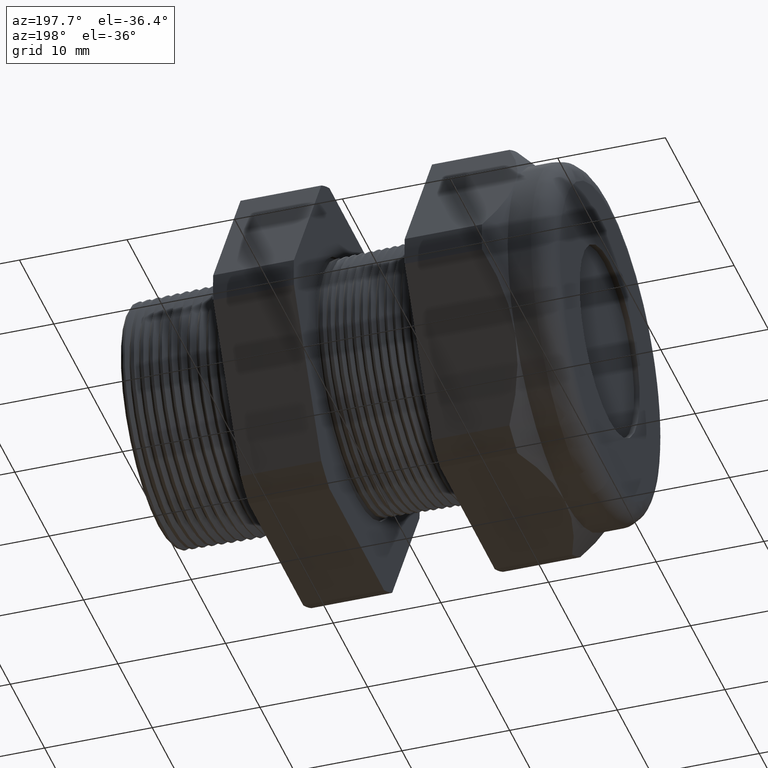
[diagram: clean part render]
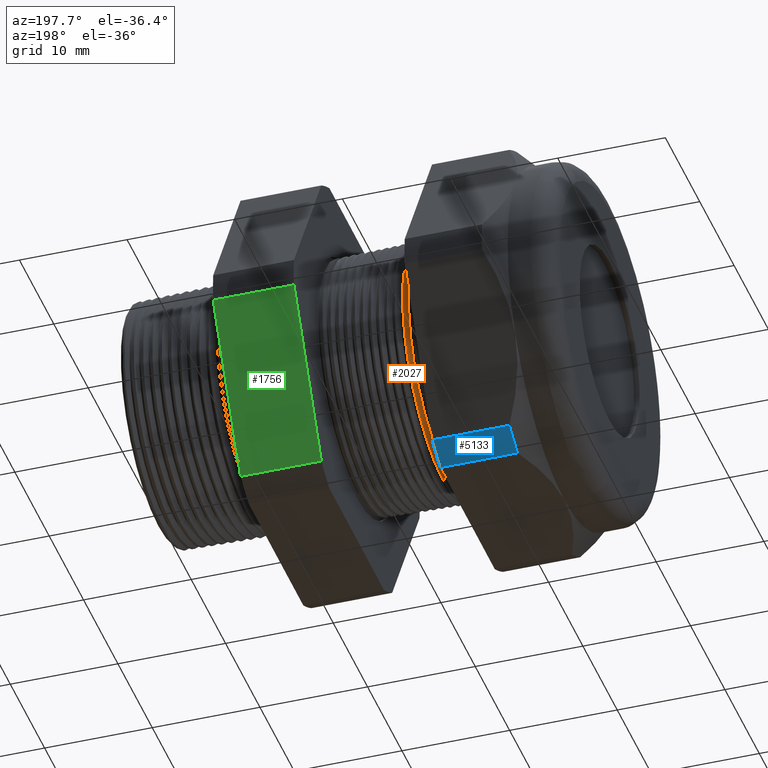
[diagram: same view with three faces highlighted in distinct colors, each labeled with its STEP entity id]
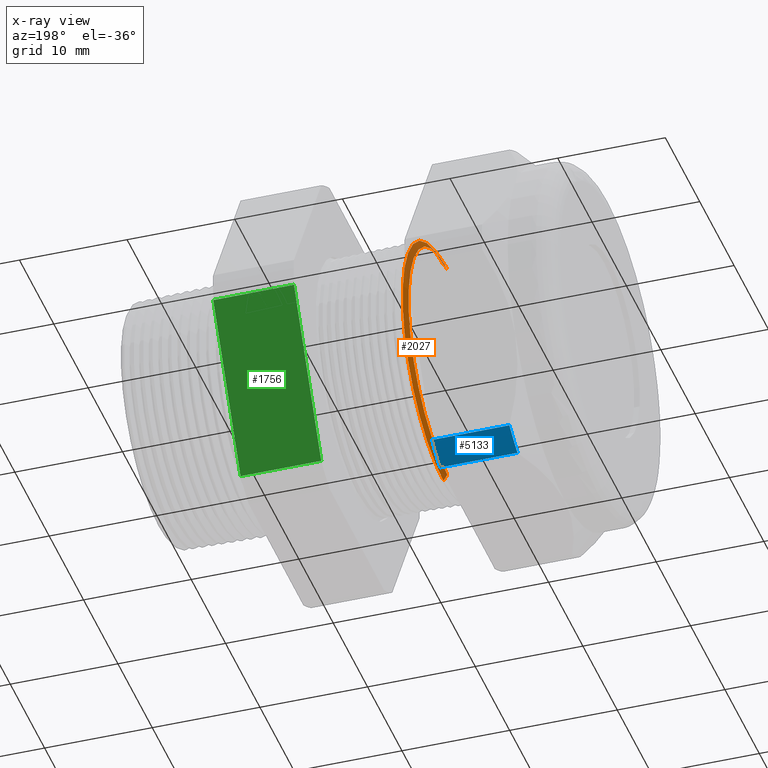
[diagram: x-ray of the same camera — body ghosted, the three highlighted faces saturated]
A machine part, auxiliary view with three faces highlighted in distinct colors.
The next image is the same camera in x-ray (body ghosted, the three faces saturated) — at least one of them is partly hidden behind the body in this view.
Their STEP definitions:

[orange] entity #2027 — the highlighted conical surface has half-angle 58.5 deg.
#2003 = VERTEX_POINT ( 'NONE', #4179 ) ;
#2004 = ORIENTED_EDGE ( 'NONE', *, *, #2005, .T. ) ;
#2005 = EDGE_CURVE ( 'NONE', #2003, #2006, #4178, .T. ) ;
#2006 = VERTEX_POINT ( 'NONE', #4174 ) ;
#2007 = ORIENTED_EDGE ( 'NONE', *, *, #2008, .T. ) ;
#2008 = EDGE_CURVE ( 'NONE', #2006, #2009, #4173, .T. ) ;
#2009 = VERTEX_POINT ( 'NONE', #4168 ) ;
#2010 = ORIENTED_EDGE ( 'NONE', *, *, #2011, .F. ) ;
#2011 = EDGE_CURVE ( 'NONE', #2031, #2009, #4167, .T. ) ;
#2027 = ADVANCED_FACE ( 'NONE', ( #4198 ), #4196, .T. ) ;
#2028 = EDGE_LOOP ( 'NONE', ( #2029, #2004, #2007, #2010 ) ) ;
#2029 = ORIENTED_EDGE ( 'NONE', *, *, #2030, .T. ) ;
#2030 = EDGE_CURVE ( 'NONE', #2031, #2003, #4191, .T. ) ;
#2031 = VERTEX_POINT ( 'NONE', #4187 ) ;
#4164 = DIRECTION ( 'NONE',  ( 0.5224985647159348100, 0.0000000000000000000, -0.8526401643541007300 ) ) ;
#4165 = VECTOR ( 'NONE', #4164, 39.37007874015748900 ) ;
#4166 = CARTESIAN_POINT ( 'NONE',  ( -0.9365405736958171100, 0.0000000000000000000, -0.4446307351718083400 ) ) ;
#4167 = LINE ( 'NONE', #4166, #4165 ) ;
#4168 = CARTESIAN_POINT ( 'NONE',  ( -0.9224049386564370200, 5.727648526171992200E-017, -0.4676979950594573600 ) ) ;
#4169 = DIRECTION ( 'NONE',  ( 0.0000000000000000000, 0.0000000000000000000, -1.000000000000000000 ) ) ;
#4170 = DIRECTION ( 'NONE',  ( -1.000000000000000000, 0.0000000000000000000, 0.0000000000000000000 ) ) ;
#4171 = CARTESIAN_POINT ( 'NONE',  ( -0.9224049386564370200, 0.0000000000000000000, 0.0000000000000000000 ) ) ;
#4172 = AXIS2_PLACEMENT_3D ( 'NONE', #4171, #4170, #4169 ) ;
#4173 = CIRCLE ( 'NONE', #4172, 0.4676979950594573600 ) ;
#4174 = CARTESIAN_POINT ( 'NONE',  ( -0.9224049386564370200, 0.0000000000000000000, 0.4676979950594573600 ) ) ;
#4175 = DIRECTION ( 'NONE',  ( 0.5224985647159348100, 1.044183048100722500E-016, 0.8526401643541007300 ) ) ;
#4176 = VECTOR ( 'NONE', #4175, 39.37007874015748900 ) ;
#4177 = CARTESIAN_POINT ( 'NONE',  ( -0.9365405736958171100, 5.445156066306895900E-017, 0.4446307351718083400 ) ) ;
#4178 = LINE ( 'NONE', #4177, #4176 ) ;
#4179 = CARTESIAN_POINT ( 'NONE',  ( -0.9365405736958171100, 0.0000000000000000000, 0.4446307351718083400 ) ) ;
#4187 = CARTESIAN_POINT ( 'NONE',  ( -0.9365405736958171100, 5.590738703805261400E-017, -0.4446307351718083400 ) ) ;
#4188 = DIRECTION ( 'NONE',  ( 0.0000000000000000000, 0.0000000000000000000, -1.000000000000000000 ) ) ;
#4189 = DIRECTION ( 'NONE',  ( 1.000000000000000000, 0.0000000000000000000, 0.0000000000000000000 ) ) ;
#4190 = AXIS2_PLACEMENT_3D ( 'NONE', #4197, #4189, #4188 ) ;
#4191 = CIRCLE ( 'NONE', #4190, 0.4446307351718083400 ) ;
#4192 = DIRECTION ( 'NONE',  ( 0.0000000000000000000, 0.0000000000000000000, -1.000000000000000000 ) ) ;
#4193 = DIRECTION ( 'NONE',  ( 1.000000000000000000, 0.0000000000000000000, 0.0000000000000000000 ) ) ;
#4194 = CARTESIAN_POINT ( 'NONE',  ( -0.9365405736958171100, 0.0000000000000000000, 0.0000000000000000000 ) ) ;
#4195 = AXIS2_PLACEMENT_3D ( 'NONE', #4194, #4193, #4192 ) ;
#4196 = CONICAL_SURFACE ( 'NONE', #4195, 0.4446307351718083400, 1.021017612416699200 ) ;
#4197 = CARTESIAN_POINT ( 'NONE',  ( -0.9365405736958171100, 0.0000000000000000000, 0.0000000000000000000 ) ) ;
#4198 = FACE_OUTER_BOUND ( 'NONE', #2028, .T. ) ;

[blue] entity #5133 — the highlighted cylindrical surface (partial cylindrical patch) has radius 18.3261 mm, axis along (-1, 0, 0).
#836 = DIRECTION ( 'NONE',  ( -1.000000000000000000, 0.0000000000000000000, 0.0000000000000000000 ) ) ;
#837 = VECTOR ( 'NONE', #836, 39.37007874015748100 ) ;
#838 = CARTESIAN_POINT ( 'NONE',  ( 0.1200000000000000900, 0.4063420493440886800, -0.5961949252843790100 ) ) ;
#839 = LINE ( 'NONE', #838, #837 ) ;
#881 = DIRECTION ( 'NONE',  ( 0.0000000000000000000, 0.0000000000000000000, -1.000000000000000000 ) ) ;
#882 = DIRECTION ( 'NONE',  ( 1.000000000000000000, 0.0000000000000000000, 0.0000000000000000000 ) ) ;
#883 = CARTESIAN_POINT ( 'NONE',  ( -1.293145669291338600, 0.0000000000000000000, 0.0000000000000000000 ) ) ;
#884 = AXIS2_PLACEMENT_3D ( 'NONE', #883, #882, #881 ) ;
#885 = CIRCLE ( 'NONE', #884, 0.7215000000000000300 ) ;
#891 = DIRECTION ( 'NONE',  ( 0.0000000000000000000, 0.0000000000000000000, 1.000000000000000000 ) ) ;
#892 = DIRECTION ( 'NONE',  ( -1.000000000000000000, 0.0000000000000000000, 0.0000000000000000000 ) ) ;
#893 = CARTESIAN_POINT ( 'NONE',  ( 0.1200000000000000900, 0.0000000000000000000, 0.0000000000000000000 ) ) ;
#894 = AXIS2_PLACEMENT_3D ( 'NONE', #893, #892, #891 ) ;
#896 = CYLINDRICAL_SURFACE ( 'NONE', #894, 0.7215000000000000300 ) ;
#897 = FACE_OUTER_BOUND ( 'NONE', #5114, .T. ) ;
#944 = LINE ( 'NONE', #999, #998 ) ;
#945 = CARTESIAN_POINT ( 'NONE',  ( -1.010314960629921100, 0.3131489262315934100, -0.6500000000000001300 ) ) ;
#946 = CARTESIAN_POINT ( 'NONE',  ( -1.293145669291338600, 0.3131489262315934100, -0.6500000000000001300 ) ) ;
#947 = DIRECTION ( 'NONE',  ( 0.0000000000000000000, 0.0000000000000000000, -1.000000000000000000 ) ) ;
#948 = DIRECTION ( 'NONE',  ( 1.000000000000000000, 0.0000000000000000000, 0.0000000000000000000 ) ) ;
#949 = AXIS2_PLACEMENT_3D ( 'NONE', #961, #948, #947 ) ;
#950 = CIRCLE ( 'NONE', #949, 0.7215000000000000300 ) ;
#961 = CARTESIAN_POINT ( 'NONE',  ( -1.010314960629921100, 0.0000000000000000000, 0.0000000000000000000 ) ) ;
#963 = CARTESIAN_POINT ( 'NONE',  ( -1.293145669291338600, 0.4063420493440886800, -0.5961949252843791200 ) ) ;
#968 = CARTESIAN_POINT ( 'NONE',  ( -1.010314960629921100, 0.4063420493440886800, -0.5961949252843790100 ) ) ;
#997 = DIRECTION ( 'NONE',  ( -1.000000000000000000, 0.0000000000000000000, 0.0000000000000000000 ) ) ;
#998 = VECTOR ( 'NONE', #997, 39.37007874015748100 ) ;
#999 = CARTESIAN_POINT ( 'NONE',  ( 0.1200000000000000900, 0.3131489262315934100, -0.6500000000000001300 ) ) ;
#5098 = EDGE_CURVE ( 'NONE', #5156, #5160, #839, .T. ) ;
#5114 = EDGE_LOOP ( 'NONE', ( #5116, #5123, #5159, #5141 ) ) ;
#5116 = ORIENTED_EDGE ( 'NONE', *, *, #5170, .T. ) ;
#5123 = ORIENTED_EDGE ( 'NONE', *, *, #5138, .T. ) ;
#5133 = ADVANCED_FACE ( 'NONE', ( #897 ), #896, .T. ) ;
#5138 = EDGE_CURVE ( 'NONE', #5164, #5160, #885, .T. ) ;
#5141 = ORIENTED_EDGE ( 'NONE', *, *, #5163, .F. ) ;
#5156 = VERTEX_POINT ( 'NONE', #968 ) ;
#5159 = ORIENTED_EDGE ( 'NONE', *, *, #5098, .F. ) ;
#5160 = VERTEX_POINT ( 'NONE', #963 ) ;
#5163 = EDGE_CURVE ( 'NONE', #5166, #5156, #950, .T. ) ;
#5164 = VERTEX_POINT ( 'NONE', #946 ) ;
#5166 = VERTEX_POINT ( 'NONE', #945 ) ;
#5170 = EDGE_CURVE ( 'NONE', #5166, #5164, #944, .T. ) ;

[green] entity #1756 — the highlighted planar face has unit normal (0, 0.866, -0.5).
#517 = VERTEX_POINT ( 'NONE', #3322 ) ;
#566 = VERTEX_POINT ( 'NONE', #3468 ) ;
#613 = EDGE_CURVE ( 'NONE', #517, #566, #3515, .T. ) ;
#667 = EDGE_CURVE ( 'NONE', #672, #4922, #3667, .T. ) ;
#672 = VERTEX_POINT ( 'NONE', #3658 ) ;
#1755 = ORIENTED_EDGE ( 'NONE', *, *, #1760, .T. ) ;
#1756 = ADVANCED_FACE ( 'NONE', ( #3762 ), #3761, .T. ) ;
#1760 = EDGE_CURVE ( 'NONE', #517, #4922, #3752, .T. ) ;
#1764 = ORIENTED_EDGE ( 'NONE', *, *, #667, .F. ) ;
#1765 = ORIENTED_EDGE ( 'NONE', *, *, #4973, .F. ) ;
#1767 = EDGE_LOOP ( 'NONE', ( #1755, #1764, #1765, #1779 ) ) ;
#1779 = ORIENTED_EDGE ( 'NONE', *, *, #613, .F. ) ;
#3322 = CARTESIAN_POINT ( 'NONE',  ( -0.3100000000000000000, 0.4063420493440886800, -0.5961949252843790100 ) ) ;
#3468 = CARTESIAN_POINT ( 'NONE',  ( -0.3100000000000000000, 0.7194909755756817600, -0.05380507471562094600 ) ) ;
#3512 = DIRECTION ( 'NONE',  ( 0.0000000000000000000, 0.4999999999999996100, 0.8660254037844388200 ) ) ;
#3513 = VECTOR ( 'NONE', #3512, 39.37007874015748900 ) ;
#3514 = CARTESIAN_POINT ( 'NONE',  ( -0.3100000000000000000, 0.8879165124598849000, 0.2379165124598850200 ) ) ;
#3515 = LINE ( 'NONE', #3514, #3513 ) ;
#3658 = CARTESIAN_POINT ( 'NONE',  ( -0.6052755905511810800, 0.7194909755756818700, -0.05380507471562089700 ) ) ;
#3664 = DIRECTION ( 'NONE',  ( 0.0000000000000000000, -0.4999999999999996100, -0.8660254037844388200 ) ) ;
#3665 = VECTOR ( 'NONE', #3664, 39.37007874015748900 ) ;
#3666 = CARTESIAN_POINT ( 'NONE',  ( -0.6052755905511809600, 0.8879165124598849000, 0.2379165124598850200 ) ) ;
#3667 = LINE ( 'NONE', #3666, #3665 ) ;
#3749 = DIRECTION ( 'NONE',  ( -1.000000000000000000, 0.0000000000000000000, 0.0000000000000000000 ) ) ;
#3750 = VECTOR ( 'NONE', #3749, 39.37007874015748100 ) ;
#3751 = CARTESIAN_POINT ( 'NONE',  ( 0.1200000000000000900, 0.4063420493440886800, -0.5961949252843790100 ) ) ;
#3752 = LINE ( 'NONE', #3751, #3750 ) ;
#3757 = DIRECTION ( 'NONE',  ( 0.0000000000000000000, 0.4999999999999996100, 0.8660254037844388200 ) ) ;
#3758 = DIRECTION ( 'NONE',  ( 0.0000000000000000000, 0.8660254037844388200, -0.4999999999999996100 ) ) ;
#3759 = CARTESIAN_POINT ( 'NONE',  ( 0.1200000000000000900, 0.7194909755756818700, -0.05380507471562089700 ) ) ;
#3760 = AXIS2_PLACEMENT_3D ( 'NONE', #3759, #3758, #3757 ) ;
#3761 = PLANE ( 'NONE',  #3760 ) ;
#3762 = FACE_OUTER_BOUND ( 'NONE', #1767, .T. ) ;
#4703 = CARTESIAN_POINT ( 'NONE',  ( -0.6052755905511809600, 0.4063420493440886800, -0.5961949252843791200 ) ) ;
#4813 = DIRECTION ( 'NONE',  ( -1.000000000000000000, 0.0000000000000000000, 0.0000000000000000000 ) ) ;
#4814 = VECTOR ( 'NONE', #4813, 39.37007874015748100 ) ;
#4815 = CARTESIAN_POINT ( 'NONE',  ( 0.1200000000000000900, 0.7194909755756818700, -0.05380507471562089700 ) ) ;
#4820 = LINE ( 'NONE', #4815, #4814 ) ;
#4922 = VERTEX_POINT ( 'NONE', #4703 ) ;
#4973 = EDGE_CURVE ( 'NONE', #566, #672, #4820, .T. ) ;